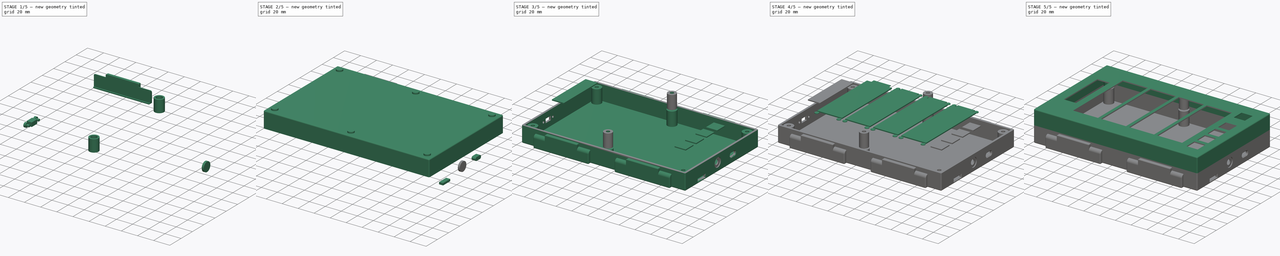
[diagram: build sequence overview — one tinted view per stage of 5, left to right]
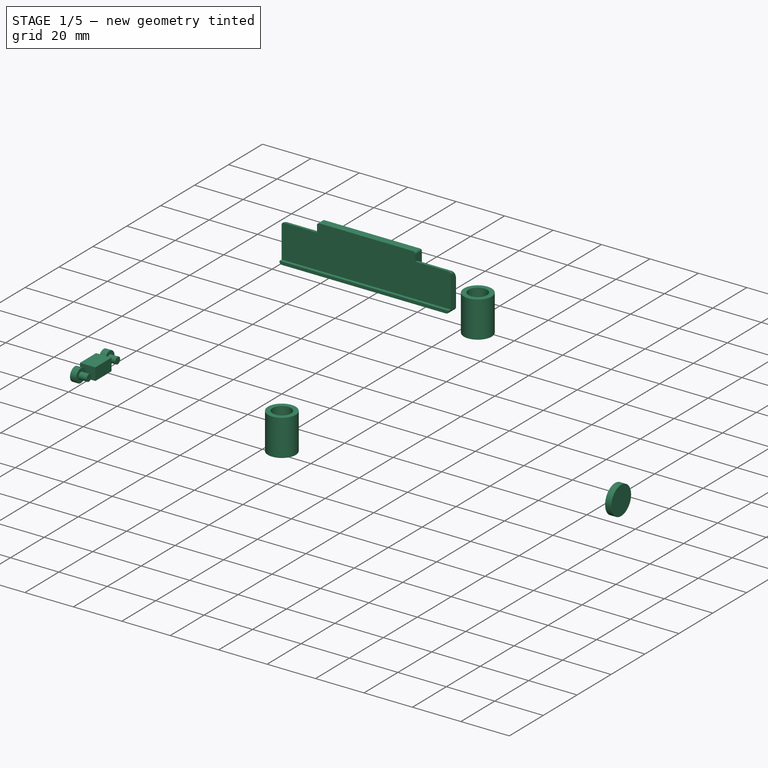
[diagram: stage 1 of 5 — iso view after this stage's code; geometry added in this stage tinted green]
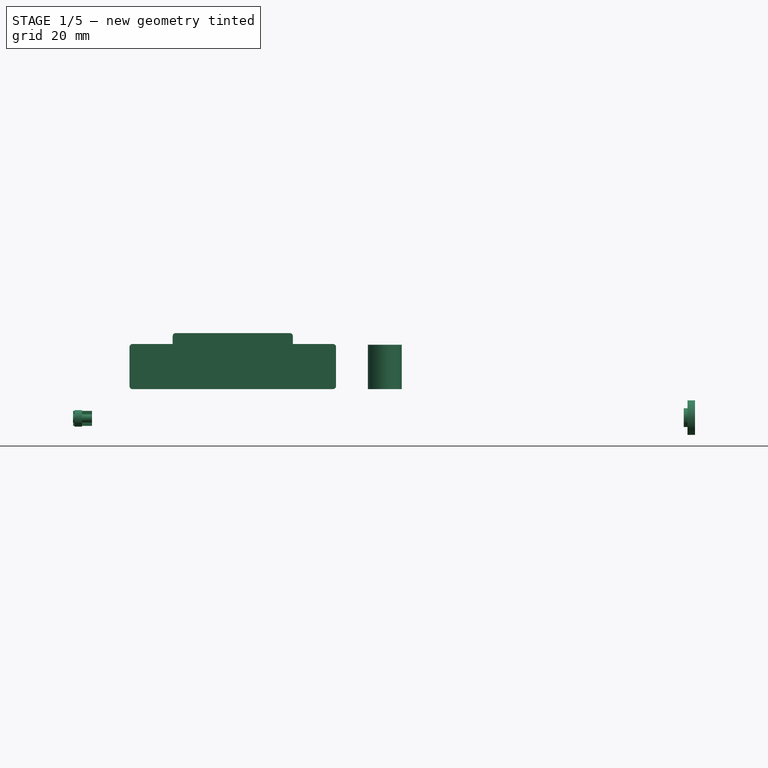
[diagram: stage 1 of 5 — front view after this stage's code; geometry added in this stage tinted green]
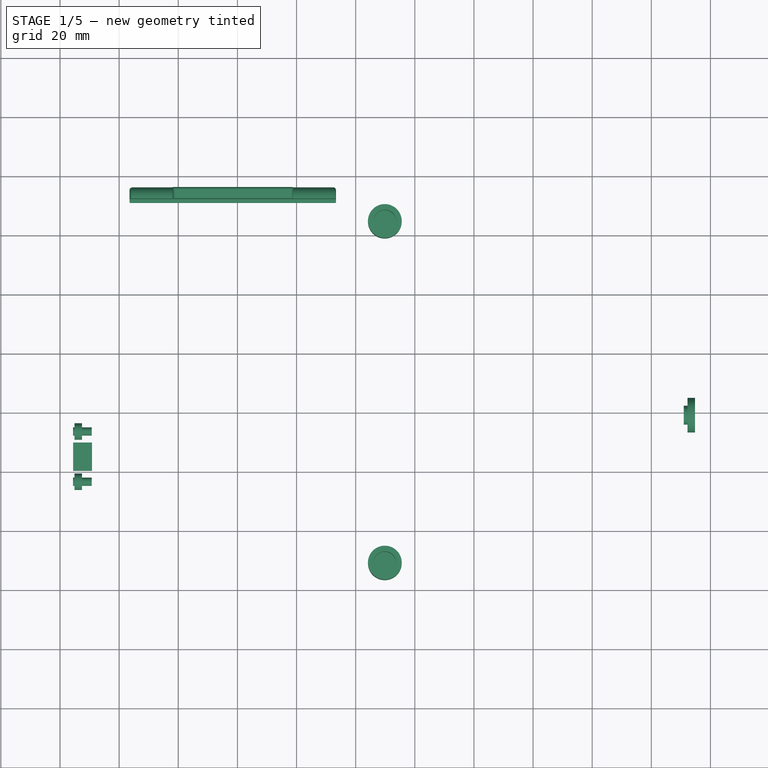
[diagram: stage 1 of 5 — top view after this stage's code; geometry added in this stage tinted green]
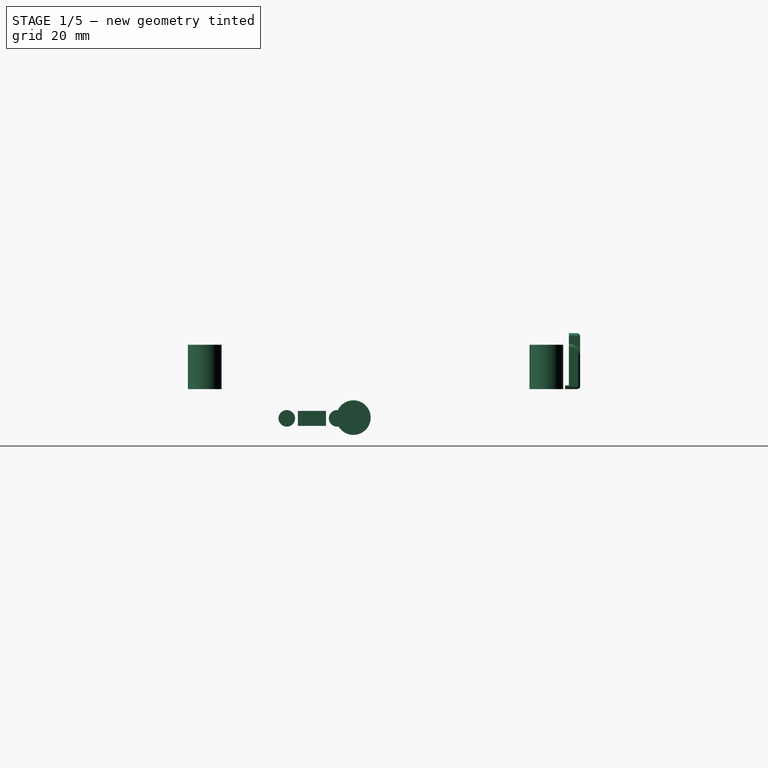
[diagram: stage 1 of 5 — right view after this stage's code; geometry added in this stage tinted green]
FCSTD DOCUMENT  (FreeCAD 2024.1003R39043 (Git))
Label: case
License: All rights reserved
LicenseURL: https://en.wikipedia.org/wiki/All_rights_reserved
objects: Part::Cylinder×28, Part::Box×26, Part::MultiFuse×20, Part::FeaturePython×18, Part::Cut×15, Part::Feature×9, App::Link×5, App::Part×5, Part::Fillet×3, Sketcher::SketchObject×3, Part::Extrusion×3, Part::Thickness×2, Part::Chamfer×2, App::LinkGroup×1, PartDesign::CoordinateSystem×1
note: 133 computed .brp shape members not serialized (recipe doc carries the construction recipe); baked Part::Feature solids carry a one-line shape summary decoded from their .brp

FEATURE [Part::Cylinder] Cylinder020
  Angle = 360
  AttacherType = Attacher::AttachEngine3D
  FirstAngle = 0
  Height = 2.54
  InvalidShape = false
  Placement = pos=(252.222,-100.838,-9.652) rot=(0,1,0;1.5708rad)
  Radius = 5.842
  SecondAngle = 0
  TreeRank = 7806
  ValidateShape = false
FEATURE [Part::Cylinder] Cylinder021
  Angle = 360
  AttacherType = Attacher::AttachEngine3D
  FirstAngle = 0
  Height = 3.81
  InvalidShape = false
  Placement = pos=(250.952,-100.838,-9.652) rot=(0,1,0;1.5708rad)
  Radius = 3.175
  SecondAngle = 0
  TreeRank = 7806
  ValidateShape = false
FEATURE [Part::MultiFuse] Fusion014
  InvalidShape = false
  Shapes = -> [Cylinder020,Cylinder021]
  TreeRank = 7807
  ValidateShape = false
FEATURE [Part::Box] Box022  label="Cube022"
  AttacherType = Attacher::AttachEngine3D
  Height = 5.08
  InvalidShape = false
  Length = 6.35
  Placement = pos=(44.45,-119.634,-12.446) rot=(0,0,1;0rad)
  TreeRank = 7815
  ValidateShape = false
  Width = 9.525
FEATURE [Part::Cylinder] Cylinder022
  Angle = 360
  AttacherType = Attacher::AttachEngine3D
  FirstAngle = 0
  Height = 6.35
  InvalidShape = false
  Placement = pos=(0,0,0) rot=(0,1,0;4.71239rad)
  Radius = 1.397
  SecondAngle = 0
  TreeRank = 7810
  ValidateShape = false
FEATURE [Part::Cylinder] Cylinder023
  Angle = 360
  AttacherType = Attacher::AttachEngine3D
  FirstAngle = 0
  Height = 6.35
  InvalidShape = false
  Placement = pos=(0,-17.018,0) rot=(0,-1,0;1.5708rad)
  Radius = 1.397
  SecondAngle = 0
  TreeRank = 7810
  ValidateShape = false
FEATURE [Part::MultiFuse] Fusion015
  InvalidShape = false
  Placement = pos=(50.7492,-106.35,-9.906) rot=(0,0,1;0rad)
  Shapes = -> [Cylinder023,Cylinder022]
  TreeRank = 7814
  ValidateShape = false
FEATURE [Part::MultiFuse] Fusion016
  InvalidShape = false
  Shapes = -> [Fusion015,Box022]
  TreeRank = 7816
  ValidateShape = false
FEATURE [Part::Cylinder] Cylinder024
  Angle = 360
  AttacherType = Attacher::AttachEngine3D
  FirstAngle = 0
  Height = 2.54
  InvalidShape = false
  Placement = pos=(0,0,0) rot=(0,1,0;4.71239rad)
  Radius = 2.794
  SecondAngle = 0
  TreeRank = 7819
  ValidateShape = false
FEATURE [Part::Cylinder] Cylinder025
  Angle = 360
  AttacherType = Attacher::AttachEngine3D
  FirstAngle = 0
  Height = 2.54
  InvalidShape = false
  Placement = pos=(0,-17.018,0) rot=(0,-1,0;1.5708rad)
  Radius = 2.794
  SecondAngle = 0
  TreeRank = 7820
  ValidateShape = false
FEATURE [Part::MultiFuse] Fusion017
  InvalidShape = false
  Placement = pos=(47.4472,-106.35,-9.906) rot=(0,0,1;0rad)
  Shapes = -> [Cylinder025,Cylinder024]
  TreeRank = 7821
  ValidateShape = false
FEATURE [Part::Cylinder] Cylinder026
  Angle = 360
  AttacherType = Attacher::AttachEngine3D
  FirstAngle = 0
  Height = 5.08
  InvalidShape = false
  Placement = pos=(149.86,-35.56,0) rot=(0,0,1;0rad)
  Radius = 3.81
  SecondAngle = 0
  TreeRank = 7831
  ValidateShape = false
FEATURE [Part::Cylinder] Cylinder027
  Angle = 360
  AttacherType = Attacher::AttachEngine3D
  FirstAngle = 0
  Height = 5.08
  InvalidShape = false
  Placement = pos=(149.86,-151.13,0) rot=(0,0,1;0rad)
  Radius = 3.81
  SecondAngle = 0
  TreeRank = 7832
  ValidateShape = false
FEATURE [Part::FeaturePython] Tube014  # WARN: FeaturePython — macro-defined, semantics opaque (R4)
  AttacherType = Attacher::AttachEngine3D
  Height = 14.986
  InnerRadius = 3.81
  InvalidShape = false
  OuterRadius = 5.715
  Placement = pos=(149.86,-35.56,0) rot=(0,0,1;0rad)
  TreeRank = 7833
  ValidateShape = false
FEATURE [Part::FeaturePython] Tube015  # WARN: FeaturePython — macro-defined, semantics opaque (R4)
  AttacherType = Attacher::AttachEngine3D
  Height = 14.986
  InnerRadius = 3.81
  InvalidShape = false
  OuterRadius = 5.715
  Placement = pos=(149.86,-151.13,0) rot=(0,0,1;0rad)
  TreeRank = 7834
  ValidateShape = false
FEATURE [Part::FeaturePython] Tube016  # WARN: FeaturePython — macro-defined, semantics opaque (R4)
  AttacherType = Attacher::AttachEngine3D
  Height = 2.54
  InnerRadius = 2.2606
  InvalidShape = false
  OuterRadius = 5.715
  Placement = pos=(149.86,-35.56,0) rot=(0,0,1;0rad)
  TreeRank = 7835
  ValidateShape = false
FEATURE [Part::FeaturePython] Tube017  # WARN: FeaturePython — macro-defined, semantics opaque (R4)
  AttacherType = Attacher::AttachEngine3D
  Height = 2.54
  InnerRadius = 2.2606
  InvalidShape = false
  OuterRadius = 5.715
  Placement = pos=(149.86,-151.13,0) rot=(0,0,1;0rad)
  TreeRank = 7836
  ValidateShape = false
FEATURE [Part::Box] Box023  label="Cube023"
  AttacherType = Attacher::AttachEngine3D
  Height = 11.43
  InvalidShape = false
  Length = 69.85
  TreeRank = 7837
  ValidateShape = false
  Width = 3.81
FEATURE [Sketcher::SketchObject] Sketch001
  ArcFitTolerance = 1e-06
  AttachmentSupport = -> [Box023]
  ExternalBSplineMaxDegree = 5
  ExternalBSplineTolerance = 0.0001
  ExternalGeometry = -> [Box023]
  FullyConstrained = true
  InternalTolerance = 1e-06
  InvalidShape = false
  MakeInternals = false
  MapMode = 5
  Placement = pos=(69.85,0,0) rot=(0.57735,0.57735,0.57735;2.0944rad)
  Support = -> [Box023]
  TreeRank = 7838
  ValidateShape = false
  sketch-geometry (3):
    g0: ArcOfCircle CenterX=0 CenterY=11.43 CenterZ=0 NormalX=0 NormalY=0 NormalZ=1 AngleXU=0 Radius=3.81 StartAngle=3e-16 EndAngle=1.5708
    g1: LineSegment StartX=0 StartY=15.24 StartZ=0 EndX=0 EndY=11.43 EndZ=0
    g2: LineSegment StartX=0 StartY=11.43 StartZ=0 EndX=3.81 EndY=11.43 EndZ=0
  constraints (7):
    c: Coincident(g0,g-3)
    c: Coincident(g0,g-3)
    c: PointOnObject(g0,g-2)
    c: Coincident(g1,g0)
    c: Coincident(g1,g0)
    c: Coincident(g2,g0)
    c: Coincident(g2,g0)
FEATURE [Part::Extrusion] Extrude003
  AutoTaperInnerAngle = true
  Base = -> Sketch001
  Dir = (1,0,0)
  DirMode = 2
  FaceMakerClass = Part::FaceMakerBullseye
  InvalidShape = false
  LengthFwd = 0
  LengthRev = 69.85
  Linearize = true
  Solid = true
  Symmetric = false
  TaperInnerAngle = 0
  TaperInnerAngleRev = 0
  TreeRank = 7840
  ValidateShape = false
FEATURE [Part::Box] Box024  label="Cube024"
  AttacherType = Attacher::AttachEngine3D
  Height = 7.62
  InvalidShape = false
  Length = 40.64
  Placement = pos=(14.605,0,11.303) rot=(0,0,1;0rad)
  TreeRank = 7841
  ValidateShape = false
  Width = 3.81
FEATURE [App::Link] Link  label="Link(Fillet002)"
  AutoLinkLabel = true
  AutoPlacement = true
  LinkPlacement = pos=(3.05176e-06,0.635,-1.16348e-06) rot=(0,0,1;0rad)
  LinkTransform = true
  LinkedObject = -> Fillet002
  Placement = pos=(3.05176e-06,0.635,-1.16348e-06) rot=(0,0,1;0rad)
  SyncGroupVisibility = false
  TreeRank = 7845
  _LinkVersion = 1
FEATURE [App::Link] Link001  label="Link001(*Fillet002)"
  AutoLinkLabel = true
  AutoPlacement = true
  LinkPlacement = pos=(102.87,0.634989,-1.16348e-06) rot=(0,0,1;0rad)
  LinkedObject = -> Link
  Placement = pos=(102.87,0.634989,-1.16348e-06) rot=(0,0,1;0rad)
  SyncGroupVisibility = false
  TreeRank = 7847
  _LinkVersion = 1
FEATURE [App::Link] Link002  label="Link002(*Fillet002)"
  AutoLinkLabel = true
  AutoPlacement = true
  LinkPlacement = pos=(299.72,-187.325,1.2207e-06) rot=(0,0,1;3.14159rad)
  LinkedObject = -> Link001
  Placement = pos=(299.72,-187.325,1.2207e-06) rot=(0,0,1;3.14159rad)
  SyncGroupVisibility = false
  TreeRank = 7848
  _LinkVersion = 1
FEATURE [App::Link] Link003  label="Link003(*Fillet002)"
  AutoLinkLabel = true
  AutoPlacement = true
  LinkPlacement = pos=(196.85,-187.325,2.67029e-07) rot=(0,0,1;3.14159rad)
  LinkedObject = -> Link
  Placement = pos=(196.85,-187.325,2.67029e-07) rot=(0,0,1;3.14159rad)
  SyncGroupVisibility = false
  TreeRank = 7849
  _LinkVersion = 1
FEATURE [App::LinkGroup] LinkGroup
  ElementList = -> [Link,Link001,Link002,Link003]
  LinkMode = 1
  Placement = pos=(0,-5.72205e-06,-20.32) rot=(0,0,1;0rad)
  TreeRank = 7859
  _LinkVersion = 1
FEATURE [Part::Box] Box025  label="Cube025"
  AttacherType = Attacher::AttachEngine3D
  Height = 1.27
  InvalidShape = false
  Length = 69.85
  Placement = pos=(0,-1.27,0) rot=(0,0,1;0rad)
  TreeRank = 7855
  ValidateShape = false
  Width = 1.27
FEATURE [Part::MultiFuse] Fusion019
  InvalidShape = false
  Shapes = -> [Box023,Extrude003,Box024,Box025]
  TreeRank = 7842
  ValidateShape = false
FEATURE [Part::Fillet] Fillet002
  Base = -> Fusion019
  EdgeLinks = -> Fusion019 [Edge4,Edge5,Edge8,Edge16,Edge18,Edge24,Edge25,Edge31,Edge42,Edge46,Edge49,Edge51]
  Edges = 12 edges r=1: [Edge4,Edge5,Edge8,Edge16,Edge18,Edge24,Edge25,Edge31,Edge42,Edge46,Edge49,Edge51]
  InvalidShape = false
  Placement = pos=(63.5,-27.94,0) rot=(0,0,1;0rad)
  TreeRank = 7843
  ValidateShape = false
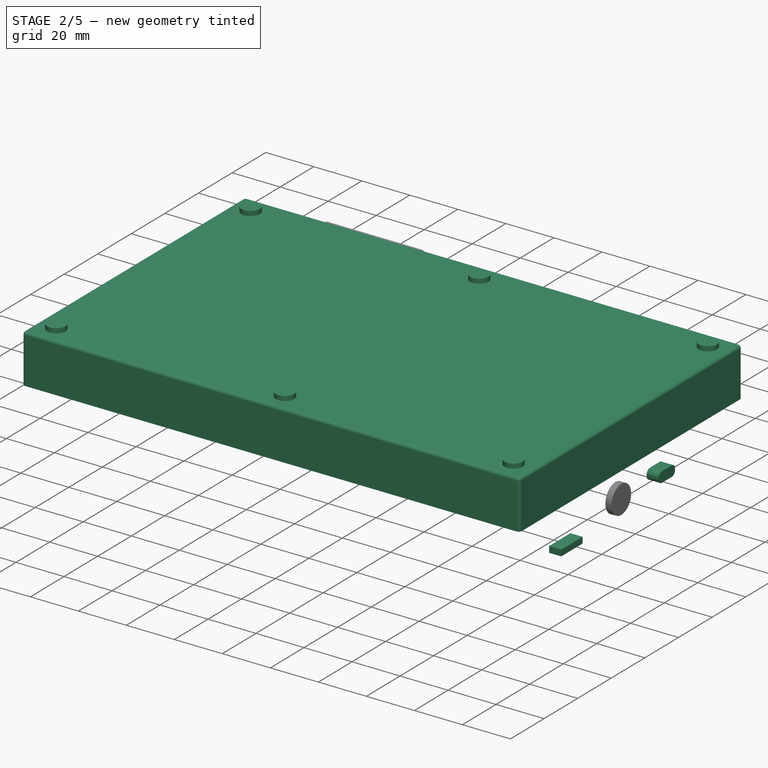
[diagram: stage 2 of 5 — iso view after this stage's code; geometry added in this stage tinted green]
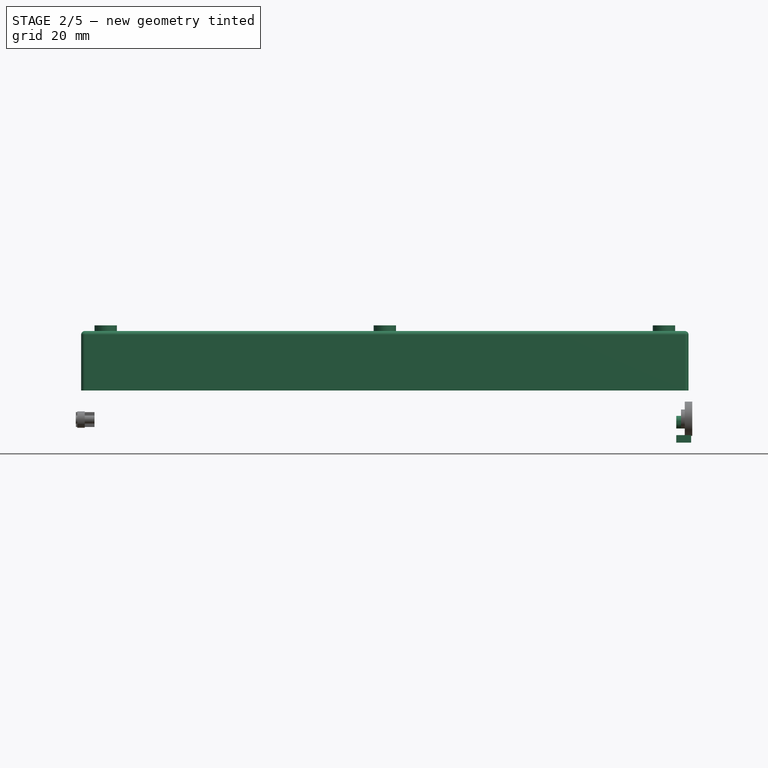
[diagram: stage 2 of 5 — front view after this stage's code; geometry added in this stage tinted green]
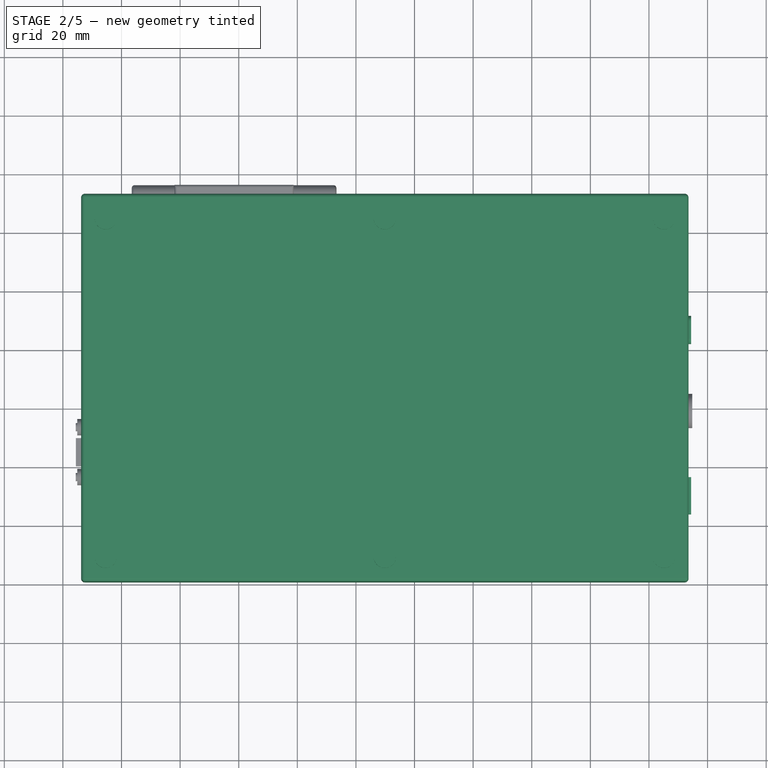
[diagram: stage 2 of 5 — top view after this stage's code; geometry added in this stage tinted green]
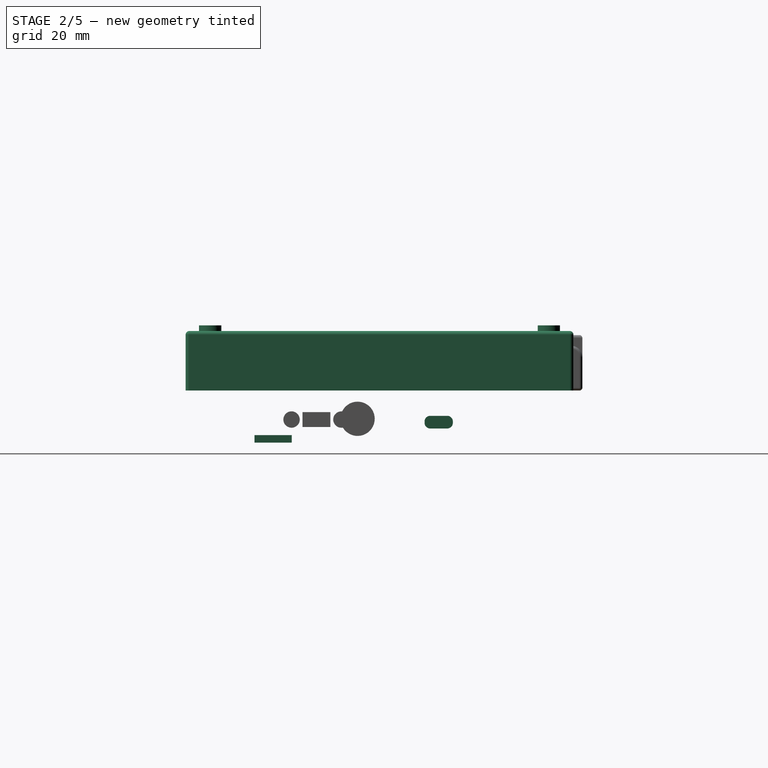
[diagram: stage 2 of 5 — right view after this stage's code; geometry added in this stage tinted green]
FEATURE [Part::Box] Box017  label="Cube017"
  AttacherType = Attacher::AttachEngine3D
  Height = 19.05
  InvalidShape = false
  Length = 204.724
  Placement = pos=(47.498,-158.242,0) rot=(0,0,1;0rad)
  TreeRank = 7787
  ValidateShape = false
  Width = 129.794
FEATURE [Part::Thickness] Thickness001
  Faces = -> Box017 [Face5]
  Intersection = false
  InvalidShape = false
  Join = 0
  Mode = 0
  SelfIntersection = false
  TreeRank = 7788
  ValidateShape = false
  Value = 1.27
FEATURE [Part::FeaturePython] Tube004  # WARN: FeaturePython — macro-defined, semantics opaque (R4)
  AttacherType = Attacher::AttachEngine3D
  Height = 14.986
  InnerRadius = 3.81
  InvalidShape = false
  OuterRadius = 5.715
  Placement = pos=(54.61,-35.56,0) rot=(0,0,1;0rad)
  TreeRank = 7770
  ValidateShape = false
FEATURE [Part::FeaturePython] Tube005  # WARN: FeaturePython — macro-defined, semantics opaque (R4)
  AttacherType = Attacher::AttachEngine3D
  Height = 14.986
  InnerRadius = 3.81
  InvalidShape = false
  OuterRadius = 5.715
  Placement = pos=(245.11,-35.56,0) rot=(0,0,1;0rad)
  TreeRank = 7770
  ValidateShape = false
FEATURE [Part::FeaturePython] Tube006  # WARN: FeaturePython — macro-defined, semantics opaque (R4)
  AttacherType = Attacher::AttachEngine3D
  Height = 14.986
  InnerRadius = 3.81
  InvalidShape = false
  OuterRadius = 5.715
  Placement = pos=(54.61,-151.13,0) rot=(0,0,1;0rad)
  TreeRank = 7770
  ValidateShape = false
FEATURE [Part::FeaturePython] Tube007  # WARN: FeaturePython — macro-defined, semantics opaque (R4)
  AttacherType = Attacher::AttachEngine3D
  Height = 14.986
  InnerRadius = 3.81
  InvalidShape = false
  OuterRadius = 5.715
  Placement = pos=(245.11,-151.13,0) rot=(0,0,1;0rad)
  TreeRank = 7770
  ValidateShape = false
FEATURE [Part::Box] Box018  label="Cube018"
  AttacherType = Attacher::AttachEngine3D
  Height = 19.05
  InvalidShape = false
  Length = 204.724
  Placement = pos=(47.498,-158.242,0) rot=(0,0,1;0rad)
  TreeRank = 7790
  ValidateShape = false
  Width = 129.794
FEATURE [Part::Box] Box019  label="Cube019"
  AttacherType = Attacher::AttachEngine3D
  Height = 19.05
  InvalidShape = false
  Length = 202.184
  Placement = pos=(48.768,-156.972,0) rot=(0,0,1;0rad)
  TreeRank = 7791
  ValidateShape = false
  Width = 127.254
FEATURE [Part::Cut] Cut009
  Base = -> Box018
  InvalidShape = false
  Tool = -> Box019
  TreeRank = 7792
  ValidateShape = false
FEATURE [Part::FeaturePython] Tube008  # WARN: FeaturePython — macro-defined, semantics opaque (R4)
  AttacherType = Attacher::AttachEngine3D
  Height = 2.54
  InnerRadius = 2.2606
  InvalidShape = false
  OuterRadius = 5.715
  Placement = pos=(54.61,-35.56,0) rot=(0,0,1;0rad)
  TreeRank = 7770
  ValidateShape = false
FEATURE [Part::FeaturePython] Tube009  # WARN: FeaturePython — macro-defined, semantics opaque (R4)
  AttacherType = Attacher::AttachEngine3D
  Height = 2.54
  InnerRadius = 2.2606
  InvalidShape = false
  OuterRadius = 5.715
  Placement = pos=(245.11,-35.56,0) rot=(0,0,1;0rad)
  TreeRank = 7770
  ValidateShape = false
FEATURE [Part::FeaturePython] Tube010  # WARN: FeaturePython — macro-defined, semantics opaque (R4)
  AttacherType = Attacher::AttachEngine3D
  Height = 2.54
  InnerRadius = 2.2606
  InvalidShape = false
  OuterRadius = 5.715
  Placement = pos=(54.61,-151.13,0) rot=(0,0,1;0rad)
  TreeRank = 7770
  ValidateShape = false
FEATURE [Part::FeaturePython] Tube011  # WARN: FeaturePython — macro-defined, semantics opaque (R4)
  AttacherType = Attacher::AttachEngine3D
  Height = 2.54
  InnerRadius = 2.2606
  InvalidShape = false
  OuterRadius = 5.715
  Placement = pos=(245.11,-151.13,0) rot=(0,0,1;0rad)
  TreeRank = 7770
  ValidateShape = false
FEATURE [Part::Cylinder] Cylinder016
  Angle = 360
  AttacherType = Attacher::AttachEngine3D
  FirstAngle = 0
  Height = 5.08
  InvalidShape = false
  Placement = pos=(54.61,-35.56,0) rot=(0,0,1;0rad)
  Radius = 3.81
  SecondAngle = 0
  TreeRank = 7797
  ValidateShape = false
FEATURE [Part::Cylinder] Cylinder017
  Angle = 360
  AttacherType = Attacher::AttachEngine3D
  FirstAngle = 0
  Height = 5.08
  InvalidShape = false
  Placement = pos=(245.11,-35.56,0) rot=(0,0,1;0rad)
  Radius = 3.81
  SecondAngle = 0
  TreeRank = 7797
  ValidateShape = false
FEATURE [Part::Cylinder] Cylinder018
  Angle = 360
  AttacherType = Attacher::AttachEngine3D
  FirstAngle = 0
  Height = 5.08
  InvalidShape = false
  Placement = pos=(54.61,-151.13,0) rot=(0,0,1;0rad)
  Radius = 3.81
  SecondAngle = 0
  TreeRank = 7797
  ValidateShape = false
FEATURE [Part::Cylinder] Cylinder019
  Angle = 360
  AttacherType = Attacher::AttachEngine3D
  FirstAngle = 0
  Height = 5.08
  InvalidShape = false
  Placement = pos=(245.11,-151.13,0) rot=(0,0,1;0rad)
  Radius = 3.81
  SecondAngle = 0
  TreeRank = 7797
  ValidateShape = false
FEATURE [Part::Box] Box020  label="Cube020"
  AttacherType = Attacher::AttachEngine3D
  Height = 2.54
  InvalidShape = false
  Length = 5.08
  Placement = pos=(249.301,-136.017,-17.78) rot=(0,0,1;0rad)
  TreeRank = 7801
  ValidateShape = false
  Width = 12.7
FEATURE [Part::Box] Box021  label="Cube021"
  AttacherType = Attacher::AttachEngine3D
  Height = 4.318
  InvalidShape = false
  Length = 5.08
  Placement = pos=(249.301,-77.978,-12.954) rot=(0,0,1;0rad)
  TreeRank = 7803
  ValidateShape = false
  Width = 9.652
FEATURE [Part::Fillet] Fillet001
  Base = -> Box021
  EdgeLinks = -> Box021 [Edge9,Edge10,Edge11,Edge12]
  Edges = 4 edges r=1.91: [Edge9,Edge10,Edge11,Edge12]
  InvalidShape = false
  TreeRank = 7804
  ValidateShape = false
FEATURE [Part::MultiFuse] Fusion013
  InvalidShape = false
  Placement = pos=(0,0,17.145) rot=(0,0,1;0rad)
  Shapes = -> [Cylinder016,Cylinder017,Cylinder018,Cylinder019,Cylinder027,Cylinder026]
  TreeRank = 7798
  ValidateShape = false
FEATURE [Part::MultiFuse] Fusion008
  InvalidShape = false
  Placement = pos=(0,0,4.064) rot=(0,0,1;0rad)
  Shapes = -> [Tube004,Tube005,Tube006,Tube007,Tube015,Tube014]
  TreeRank = 7789
  ValidateShape = false
FEATURE [Part::MultiFuse] Fusion010
  InvalidShape = false
  Placement = pos=(0,0,1.524) rot=(0,0,1;0rad)
  Shapes = -> [Tube008,Tube009,Tube010,Tube011,Tube017,Tube016]
  TreeRank = 7794
  ValidateShape = false
FEATURE [Part::MultiFuse] Fusion011
  InvalidShape = false
  Shapes = -> [Fusion010,Fusion008]
  TreeRank = 7795
  ValidateShape = false
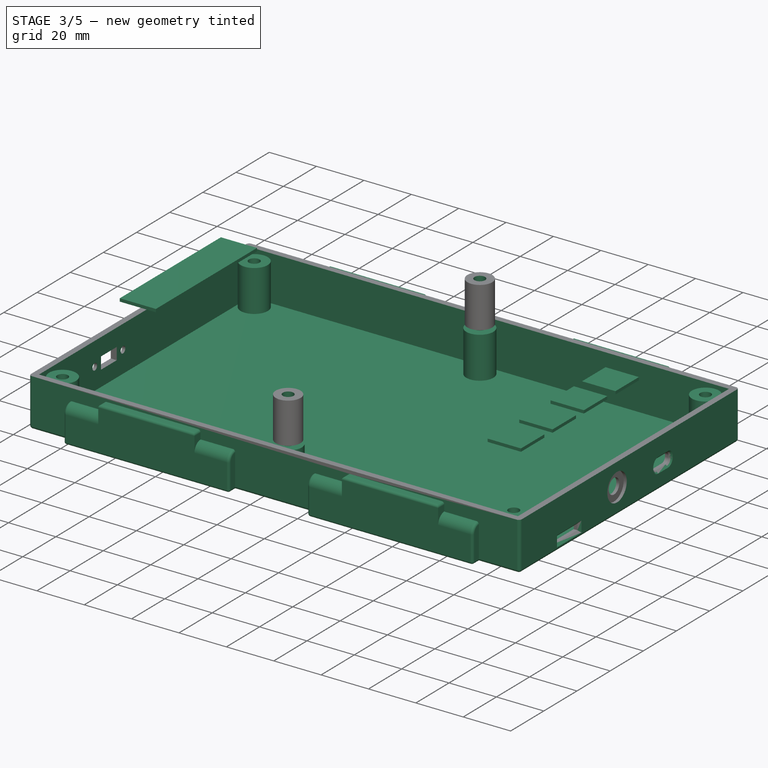
[diagram: stage 3 of 5 — iso view after this stage's code; geometry added in this stage tinted green]
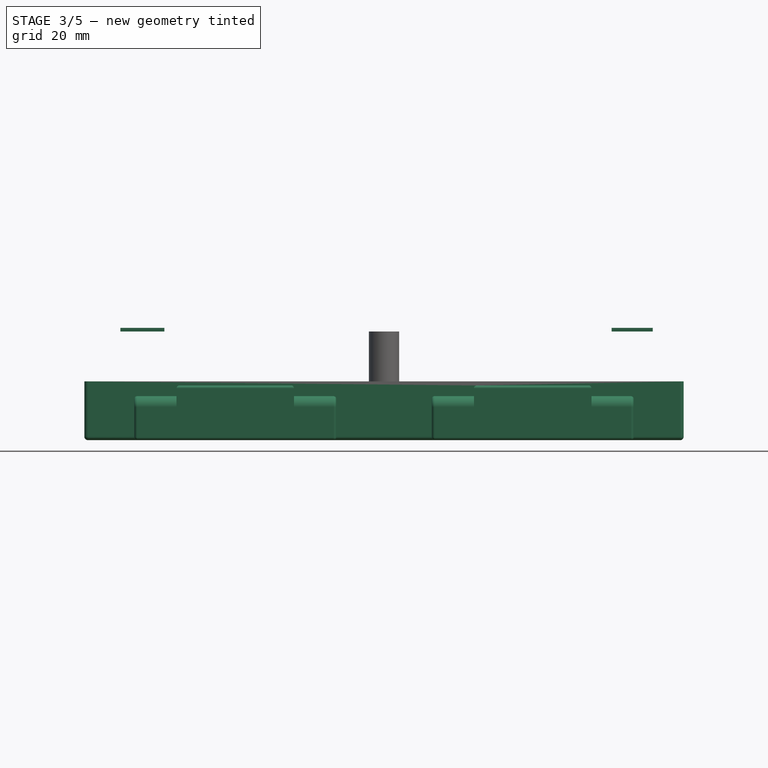
[diagram: stage 3 of 5 — front view after this stage's code; geometry added in this stage tinted green]
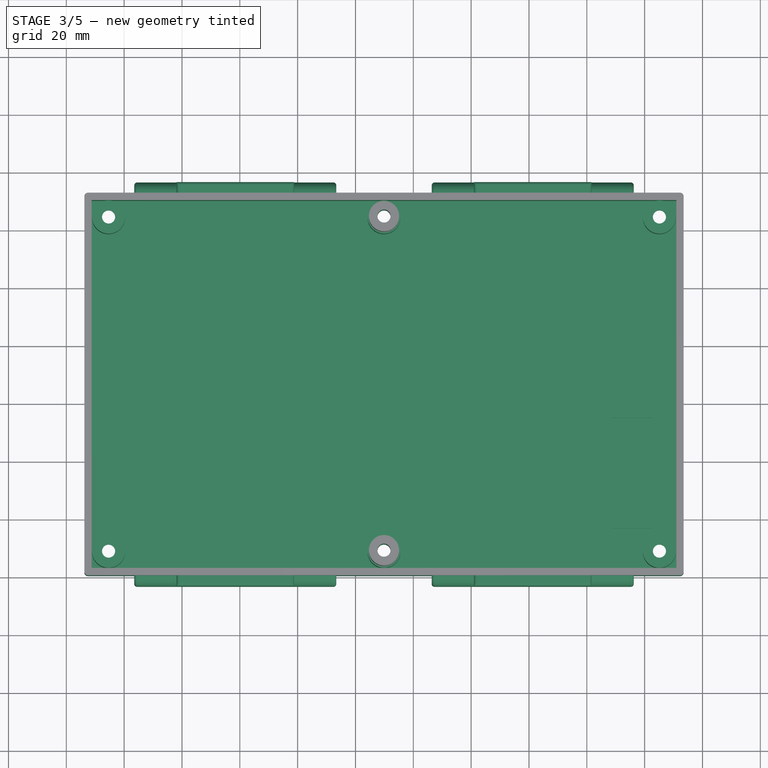
[diagram: stage 3 of 5 — top view after this stage's code; geometry added in this stage tinted green]
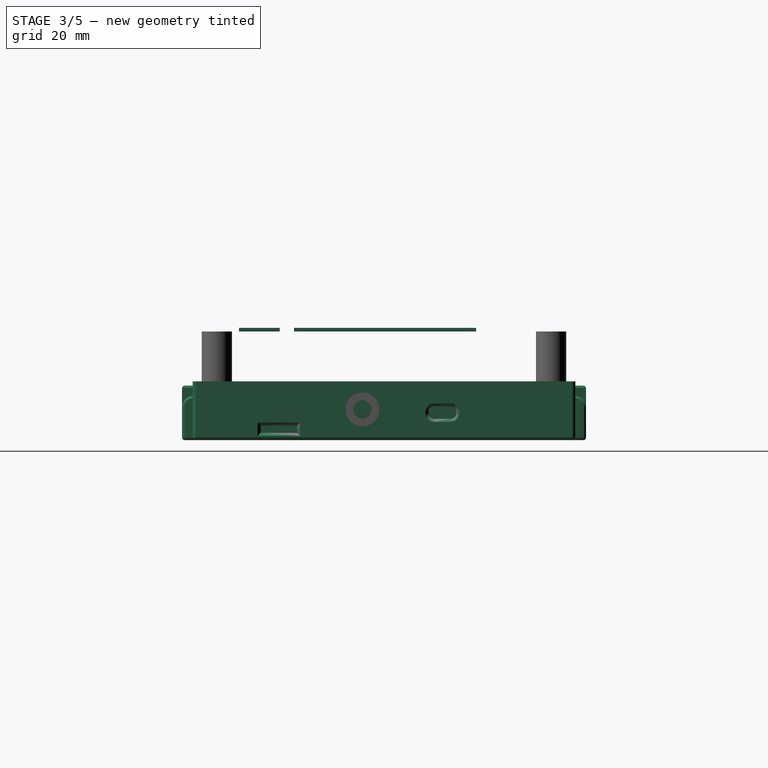
[diagram: stage 3 of 5 — right view after this stage's code; geometry added in this stage tinted green]
FEATURE [Part::Box] Box009  label="Cube009"
  AttacherType = Attacher::AttachEngine3D
  Height = 1.27
  InvalidShape = false
  Length = 15.24
  Placement = pos=(58.674,-122.428,17.272) rot=(0,0,1;0rad)
  TreeRank = 7757
  ValidateShape = false
  Width = 60.96
FEATURE [Part::Box] Box010  label="Cube010"
  AttacherType = Attacher::AttachEngine3D
  Height = 1.27
  InvalidShape = false
  Length = 14.097
  Placement = pos=(228.473,-59.436,0) rot=(0,0,1;0rad)
  TreeRank = 7760
  ValidateShape = false
  Width = 14.097
FEATURE [Part::Box] Box011  label="Cube011"
  AttacherType = Attacher::AttachEngine3D
  Height = 1.27
  InvalidShape = false
  Length = 14.097
  Placement = pos=(228.473,-78.486,0) rot=(0,0,1;0rad)
  TreeRank = 7760
  ValidateShape = false
  Width = 14.097
FEATURE [Part::Box] Box012  label="Cube012"
  AttacherType = Attacher::AttachEngine3D
  Height = 1.27
  InvalidShape = false
  Length = 14.097
  Placement = pos=(228.6,-97.536,0) rot=(0,0,1;0rad)
  TreeRank = 7760
  ValidateShape = false
  Width = 14.097
FEATURE [Part::Box] Box014  label="Cube014"
  AttacherType = Attacher::AttachEngine3D
  Height = 1.27
  InvalidShape = false
  Length = 14.097
  Placement = pos=(228.6,-116.586,0) rot=(0,0,1;0rad)
  TreeRank = 7760
  ValidateShape = false
  Width = 14.097
FEATURE [Part::MultiFuse] Fusion003
  InvalidShape = false
  Placement = pos=(0.127,-26.924,17.272) rot=(0,0,1;0rad)
  Shapes = -> [Box014,Box012,Box011,Box010]
  TreeRank = 7781
  ValidateShape = false
FEATURE [Part::MultiFuse] Fusion009
  InvalidShape = false
  Shapes = -> [Cut009,Thickness001]
  TreeRank = 7793
  ValidateShape = false
FEATURE [Part::FeaturePython] Tube012  # WARN: FeaturePython — macro-defined, semantics opaque (R4)
  AttacherType = Attacher::AttachEngine3D
  Height = 17.272
  InnerRadius = 2.2606
  InvalidShape = false
  OuterRadius = 5.2324
  Placement = pos=(149.86,-35.56,0) rot=(0,0,1;0rad)
  TreeRank = 7829
  ValidateShape = false
FEATURE [Part::FeaturePython] Tube013  # WARN: FeaturePython — macro-defined, semantics opaque (R4)
  AttacherType = Attacher::AttachEngine3D
  Height = 17.272
  InnerRadius = 2.2606
  InvalidShape = false
  OuterRadius = 5.2324
  Placement = pos=(149.86,-151.13,0) rot=(0,0,1;0rad)
  TreeRank = 7830
  ValidateShape = false
FEATURE [Part::MultiFuse] Fusion012
  InvalidShape = false
  Shapes = -> [Fusion009,Fusion011]
  TreeRank = 7796
  ValidateShape = false
FEATURE [Part::Cut] Cut010
  Base = -> Fusion012
  InvalidShape = false
  Tool = -> Fusion013
  TreeRank = 7799
  ValidateShape = false
FEATURE [Part::Fillet] Fillet
  Base = -> Cut010
  EdgeLinks = -> Cut010 [Edge71,Edge72,Edge73,Edge74,Edge75,Edge76]
  Edges = 6 edges r=1: [Edge71,Edge72,Edge73,Edge74,Edge75,Edge76]
  InvalidShape = false
  Placement = pos=(0,-186.69,2.29e-14) rot=(1,0,0;3.14159rad)
  TreeRank = 7800
  ValidateShape = false
FEATURE [Part::Cut] Cut011
  Base = -> Fillet
  InvalidShape = false
  Tool = -> Box020
  TreeRank = 7802
  ValidateShape = false
FEATURE [Part::Cut] Cut012
  Base = -> Cut011
  InvalidShape = false
  Tool = -> Fillet001
  TreeRank = 7805
  ValidateShape = false
FEATURE [Part::Cut] Cut013
  Base = -> Cut012
  InvalidShape = false
  Tool = -> Fusion014
  TreeRank = 7813
  ValidateShape = false
FEATURE [Part::Cut] Cut014
  Base = -> Cut013
  InvalidShape = false
  Tool = -> Fusion016
  TreeRank = 7817
  ValidateShape = false
FEATURE [Part::Chamfer] Chamfer
  Base = -> Cut014
  EdgeLinks = -> Cut014 [Edge59,Edge60,Edge61,Edge62,Edge64,Edge65,Edge66,Edge67,Edge68,Edge69,Edge70,Edge71]
  Edges = 12 edges r=1.02: [Edge59,Edge60,Edge61,Edge62,Edge64,Edge65,Edge66,Edge67,Edge68,Edge69,Edge70,Edge71]
  InvalidShape = false
  TreeRank = 7818
  ValidateShape = false
FEATURE [Part::Cut] Cut015
  Base = -> Chamfer
  InvalidShape = false
  Tool = -> Fusion017
  TreeRank = 7822
  ValidateShape = false
FEATURE [Part::Chamfer] Chamfer001
  Base = -> Cut015
  EdgeLinks = -> Cut015 [Edge79,Edge84]
  Edges = 2 edges r=0.51: [Edge79,Edge84]
  InvalidShape = false
  TreeRank = 7858
  ValidateShape = false
FEATURE [Sketcher::SketchObject] Sketch
  ArcFitTolerance = 1e-06
  ExternalBSplineMaxDegree = 5
  ExternalBSplineTolerance = 0.0001
  ExternalGeometry = -> [Chamfer001]
  FullyConstrained = true
  InternalTolerance = 1e-06
  InvalidShape = false
  MakeInternals = false
  MapMode = 2
  TreeRank = 7824
  ValidateShape = false
  sketch-geometry (16):
    g0: LineSegment StartX=47.5996 StartY=-28.0416 StartZ=0 EndX=252.12 EndY=-28.0416 EndZ=0
    g1: LineSegment StartX=252.628 StartY=-28.5496 StartZ=0 EndX=252.628 EndY=-158.14 EndZ=0
    g2: LineSegment StartX=252.12 StartY=-158.648 StartZ=0 EndX=47.5996 EndY=-158.648 EndZ=0
    g3: LineSegment StartX=47.0916 StartY=-158.14 StartZ=0 EndX=47.0916 EndY=-28.5496 EndZ=0
    g4: LineSegment StartX=48.0314 StartY=-28.8544 StartZ=0 EndX=251.689 EndY=-28.8544 EndZ=0
    g5: LineSegment StartX=251.816 StartY=-28.9814 StartZ=0 EndX=251.816 EndY=-157.709 EndZ=0
    g6: LineSegment StartX=251.689 StartY=-157.836 StartZ=0 EndX=48.0314 EndY=-157.836 EndZ=0
    g7: LineSegment StartX=47.9044 StartY=-157.709 StartZ=0 EndX=47.9044 EndY=-28.9814 EndZ=0
    g8: ArcOfCircle CenterX=47.5996 CenterY=-28.5496 CenterZ=0 NormalX=0 NormalY=0 NormalZ=1 AngleXU=0 Radius=0.508 StartAngle=1.5708 EndAngle=3.14159
    g9: ArcOfCircle CenterX=48.0314 CenterY=-28.9814 CenterZ=0 NormalX=0 NormalY=0 NormalZ=1 AngleXU=0 Radius=0.127 StartAngle=1.5708 EndAngle=3.14159
    g10: ArcOfCircle CenterX=47.5996 CenterY=-158.14 CenterZ=0 NormalX=0 NormalY=0 NormalZ=1 AngleXU=0 Radius=0.508 StartAngle=3.14159 EndAngle=4.71239
    g11: ArcOfCircle CenterX=48.0314 CenterY=-157.709 CenterZ=0 NormalX=0 NormalY=0 NormalZ=1 AngleXU=0 Radius=0.127 StartAngle=3.14159 EndAngle=4.71239
    g12: ArcOfCircle CenterX=252.12 CenterY=-158.14 CenterZ=0 NormalX=0 NormalY=0 NormalZ=1 AngleXU=0 Radius=0.508 StartAngle=4.71239 EndAngle=6.28319
    g13: ArcOfCircle CenterX=251.689 CenterY=-157.709 CenterZ=0 NormalX=0 NormalY=0 NormalZ=1 AngleXU=0 Radius=0.127 StartAngle=4.71239 EndAngle=6.28319
    g14: ArcOfCircle CenterX=252.12 CenterY=-28.5496 CenterZ=0 NormalX=0 NormalY=0 NormalZ=1 AngleXU=0 Radius=0.508 StartAngle=6e-16 EndAngle=1.5708
    g15: ArcOfCircle CenterX=251.689 CenterY=-28.9814 CenterZ=0 NormalX=0 NormalY=0 NormalZ=1 AngleXU=0 Radius=0.127 StartAngle=0 EndAngle=1.5708
  constraints (40):
    c: Horizontal(g0)
    c: Horizontal(g2)
    c: Vertical(g1)
    c: Vertical(g3)
    c: Horizontal(g4)
    c: Horizontal(g6)
    c: Vertical(g5)
    c: Vertical(g7)
    c: Tangent(g0,g8) = 1.5708
    c: Tangent(g3,g8) = 1.5708
    c: Radius(g8) = 0.508
    c: DistanceX(g3,g-4) = 0.4064
    c: Tangent(g4,g9) = 1.5708
    c: Tangent(g7,g9) = 1.5708
    c: Radius(g9) = 0.127
    c: DistanceX(g-4,g7) = 0.4064
    c: Tangent(g3,g10) = 1.5708
    c: Tangent(g2,g10) = 1.5708
    c: Tangent(g7,g11) = 1.5708
    c: Tangent(g6,g11) = 1.5708
    c: Radius(g10) = 0.508
    c: Radius(g11) = 0.127
    c: DistanceY(g2,g-5) = 0.4064
    c: DistanceY(g-5,g6) = 0.4064
    c: Tangent(g1,g12) = 1.5708
    c: Tangent(g2,g12) = 1.5708
    c: Tangent(g5,g13) = 1.5708
    c: Tangent(g6,g13) = 1.5708
    c: Radius(g12) = 0.508
    c: Radius(g13) = 0.127
    c: DistanceX(g5,g-6) = 0.4064
    c: DistanceX(g-6,g1) = 0.4064
    c: Tangent(g0,g14) = 1.5708
    c: Tangent(g1,g14) = 1.5708
    c: Tangent(g4,g15) = 1.5708
    c: Tangent(g5,g15) = 1.5708
    c: Radius(g14) = 0.508
    c: Radius(g15) = 0.127
    c: DistanceY(g-6,g0) = 0.4064
    c: DistanceY(g4,g-6) = 0.4064
FEATURE [Part::Extrusion] Extrude
  AutoTaperInnerAngle = true
  Base = -> Sketch
  Dir = (0,0,1)
  DirMode = 2
  FaceMakerClass = Part::FaceMakerBullseye
  InvalidShape = false
  LengthFwd = 0
  LengthRev = 1.905
  Linearize = true
  Solid = true
  Symmetric = false
  TaperInnerAngle = 0
  TaperInnerAngleRev = 0
  TreeRank = 7857
  ValidateShape = false
FEATURE [Part::Extrusion] Extrude001
  AutoTaperInnerAngle = true
  Base = -> Sketch
  Dir = (0,0,1)
  DirMode = 2
  FaceMakerClass = Part::FaceMakerBullseye
  InvalidShape = false
  LengthFwd = 1.27
  LengthRev = 0
  Linearize = true
  Placement = pos=(0,0,-1.27) rot=(0,0,1;0rad)
  Solid = true
  Symmetric = false
  TaperInnerAngle = 0
  TaperInnerAngleRev = 0
  TreeRank = 7827
  ValidateShape = false
FEATURE [Part::MultiFuse] Fusion020
  InvalidShape = false
  Shapes = -> [Chamfer001,LinkGroup]
  TreeRank = 7860
  ValidateShape = false
FEATURE [Part::Cut] Cut016  label="bottom"
  Base = -> Fusion020
  InvalidShape = false
  Tool = -> Extrude
  TreeRank = 7861
  ValidateShape = false
FEATURE [Part::Feature] Compound  label="DEV-15583 board"
  InvalidShape = false
  TreeRank = 51
  ValidateShape = false
  shape: bbox 17.78 x 4.381 x 36.26 mm, 1389 faces, 117 solids (baked)
FEATURE [Part::Feature] Compound001  label="C5-C18 (0.55mm)"
  InvalidShape = false
  Placement = pos=(2.8547,0,5.23354) rot=(-0.707107,0,0.707107;3.14159rad)
  TreeRank = 52
  ValidateShape = false
  shape: bbox 6.704 x 0.55 x 8.029 mm, 506 faces, 33 solids (baked)
FEATURE [Part::Feature] Compound002  label="C20-C24 (0.65)"
  InvalidShape = false
  Placement = pos=(4.13135,0,5.17632) rot=(-0.707107,0,0.707107;3.14159rad)
  TreeRank = 53
  ValidateShape = false
  shape: bbox 9.151 x 0.65 x 9.802 mm, 230 faces, 15 solids (baked)
FEATURE [Part::Feature] Compound003  label="R1-R3 (0.4inch)_1269AS-H-3R3M=P2"
  InvalidShape = false
  Placement = pos=(-5.00017,-3.36e-14,4.80472) rot=(0.707107,0,0.707107;3.14159rad)
  TreeRank = 54
  ValidateShape = false
  shape: bbox 7.3 x 1.016 x 11.17 mm, 138 faces, 9 solids (baked)
FEATURE [Part::Feature] Compound004  label="L1^DEV-15583 ASS"
  InvalidShape = false
  TreeRank = 55
  ValidateShape = false
  shape: bbox 1.716 x 1.2 x 0.9607 mm, 32 faces, 4 solids (baked)
FEATURE [Part::Feature] Compound005  label="C"
  InvalidShape = false
  Placement = pos=(4.37539,0,-2.08663) rot=(0.707107,0,-0.707107;3.14159rad)
  TreeRank = 56
  ValidateShape = false
  shape: bbox 0.5 x 0.55 x 1 mm, 46 faces, 3 solids (baked)
FEATURE [Part::Feature] Compound006  label="C2"
  InvalidShape = false
  Placement = pos=(-3.99897,-0.55,-1.51779) rot=(0,1,0;1.5708rad)
  TreeRank = 58
  ValidateShape = false
  shape: bbox 0.5 x 0.55 x 1 mm, 46 faces, 3 solids (baked)
FEATURE [App::Link] Link004  label="C001"
  AutoLinkLabel = true
  AutoPlacement = true
  LinkPlacement = pos=(3.27796,-0.55,-2.93881) rot=(0,1,0;1.5708rad)
  LinkedObject = -> Compound005
  Placement = pos=(3.27796,-0.55,-2.93881) rot=(0,1,0;1.5708rad)
  SyncGroupVisibility = false
  TreeRank = 57
  _LinkVersion = 1
FEATURE [PartDesign::CoordinateSystem] Local_CS_1dc7  label="Local_CS_1dc7dc7"
  AttacherType = Attacher::AttachEngine3D
  AttachmentSupport = -> [X_Axis]
  InvalidShape = false
  MapMode = 2
  Support = -> [X_Axis]
  TreeRank = 4
  ValidateShape = false
FEATURE [Sketcher::SketchObject] PCB_Sketch_1dc7  label="PCB_Sketch_1dc7dc7"
  ArcFitTolerance = 1e-06
  ExternalBSplineMaxDegree = 5
  ExternalBSplineTolerance = 0.0001
  FullyConstrained = false
  InternalTolerance = 1e-06
  InvalidShape = false
  MakeInternals = false
  TreeRank = 34
  ValidateShape = false
  sketch-geometry (4):
    g0: LineSegment StartX=91.186 StartY=-68.961 StartZ=0 EndX=212.344 EndY=-68.961 EndZ=0
    g1: LineSegment StartX=212.344 StartY=-68.961 StartZ=0 EndX=212.344 EndY=-142.494 EndZ=0
    g2: LineSegment StartX=212.344 StartY=-142.494 StartZ=0 EndX=91.186 EndY=-142.494 EndZ=0
    g3: LineSegment StartX=91.186 StartY=-142.494 StartZ=0 EndX=91.186 EndY=-68.961 EndZ=0
  constraints (4):
    c: Coincident(g2,g3)
    c: Coincident(g0,g3)
    c: Coincident(g1,g2)
    c: Coincident(g0,g1)
FEATURE [App::Part] Part  label="U1_DEV-15583_0066abb71b61"
  ClaimAllChildren = false
  ExportMode = 1
  Group = -> [Compound,Compound001,Compound002,Compound003,Compound004,Compound005,Link004,Compound006]
  Origin = -> Origin008
  Placement = pos=(129.54,-92.71,11.43) rot=(1,0,0;1.5708rad)
  TreeRank = 60
  _ExportChildren = -> [Compound,Compound001,Compound002,Compound003,Compound004,Compound005,Link004,Compound006]
  _GroupVersion = 1
FEATURE [Part::Feature] Pcb_1dc7  label="Pcb_1dc7dc7"
  InvalidShape = false
  TreeRank = 17
  ValidateShape = false
  shape: bbox 121.2 x 73.53 x 1.6 mm, 181 faces (baked)
FEATURE [App::Part] Board_Geoms_1dc7  label="Board_Geoms_1dc7dc7"
  ClaimAllChildren = false
  ExportMode = 1
  Group = -> [Pcb_1dc7,PCB_Sketch_1dc7]
  Origin = -> Origin
  TreeRank = 19
  _ExportChildren = -> [Pcb_1dc7,PCB_Sketch_1dc7]
  _GroupVersion = 1
FEATURE [Part::Feature] Shape  label="U2_Sparkfun_Ublox_M9N_9d512738489d"
  InvalidShape = false
  Placement = pos=(162.814,-90.805,13.335) rot=(0.57735,0.57735,0.57735;2.0944rad)
  TreeRank = 40
  ValidateShape = false
  shape: bbox 40.47 x 34.02 x 4.715 mm, 1495 faces, 147 solids (baked)
FEATURE [App::Part] Top_1dc7  label="Top_1dc7dc7"
  ClaimAllChildren = false
  ExportMode = 1
  Group = -> [Shape,Part]
  Origin = -> Origin003
  TreeRank = 24
  _ExportChildren = -> [Shape,Part]
  _GroupVersion = 1
FEATURE [App::Part] Step_Models_1dc7  label="Step_Models_1dc7dc7"
  ClaimAllChildren = false
  ExportMode = 1
  Group = -> [Top_1dc7]
  Origin = -> Origin002
  TreeRank = 36
  _ExportChildren = -> [Top_1dc7]
  _GroupVersion = 1
FEATURE [App::Part] Board_1dc7  label="race_computer_proto"
  ClaimAllChildren = false
  ExportMode = 1
  Group = -> [Local_CS_1dc7,Board_Geoms_1dc7,Step_Models_1dc7]
  Origin = -> Origin001
  Placement = pos=(-13,13,-13) rot=(0,0,1;0rad)
  TreeRank = 7862
  _ExportChildren = -> [Local_CS_1dc7,Board_Geoms_1dc7,Step_Models_1dc7]
  _GroupVersion = 1
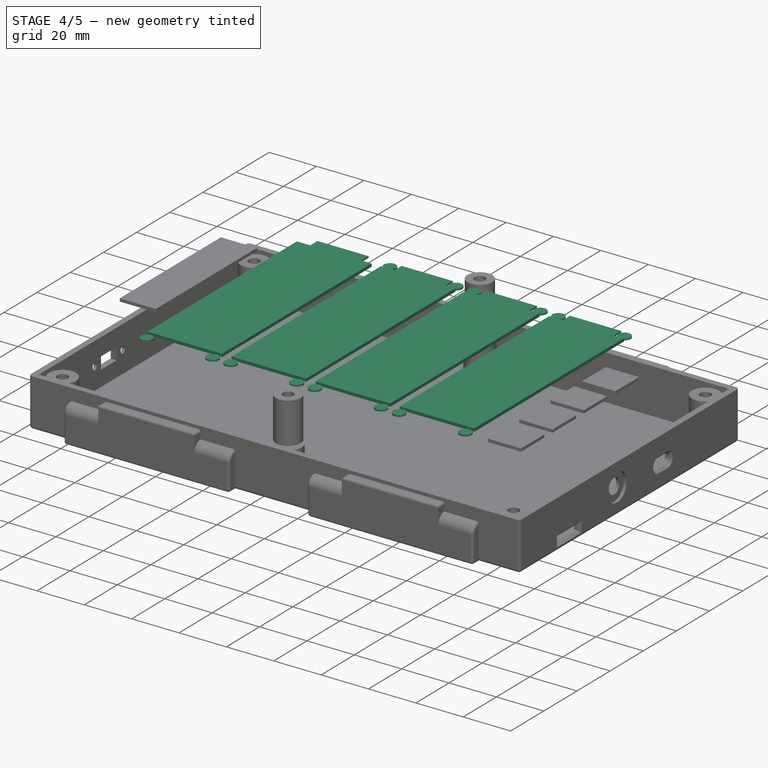
[diagram: stage 4 of 5 — iso view after this stage's code; geometry added in this stage tinted green]
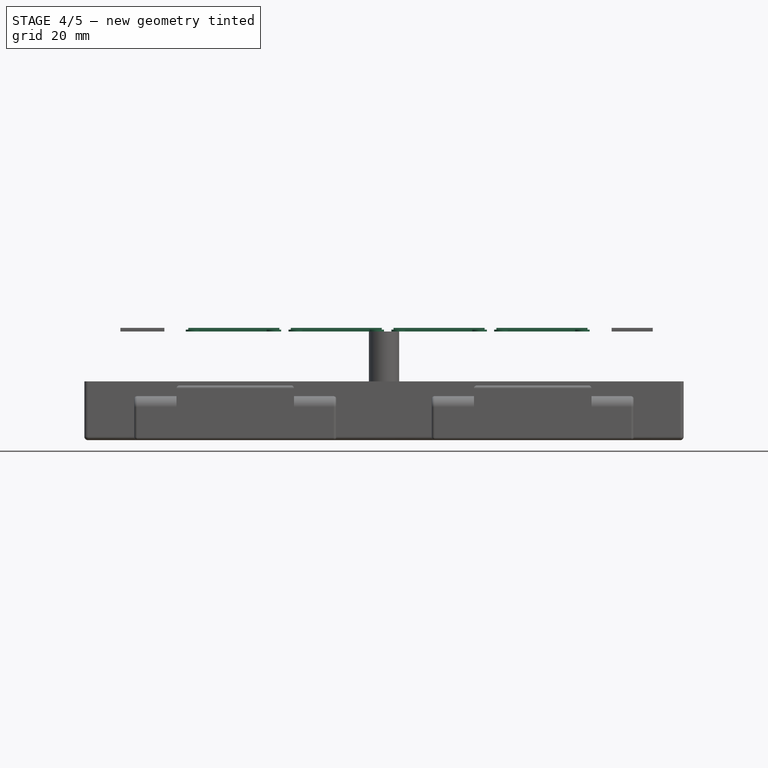
[diagram: stage 4 of 5 — front view after this stage's code; geometry added in this stage tinted green]
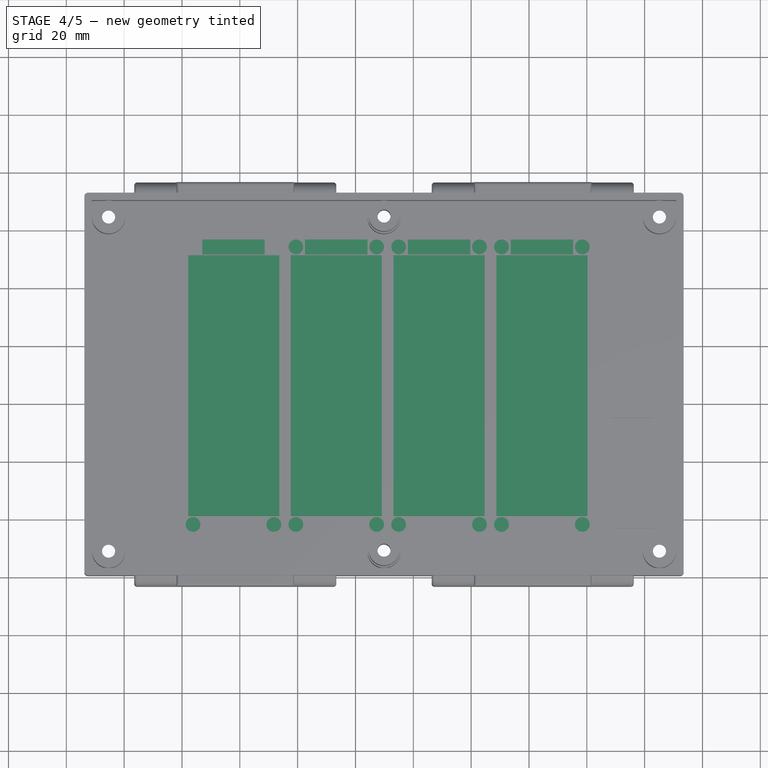
[diagram: stage 4 of 5 — top view after this stage's code; geometry added in this stage tinted green]
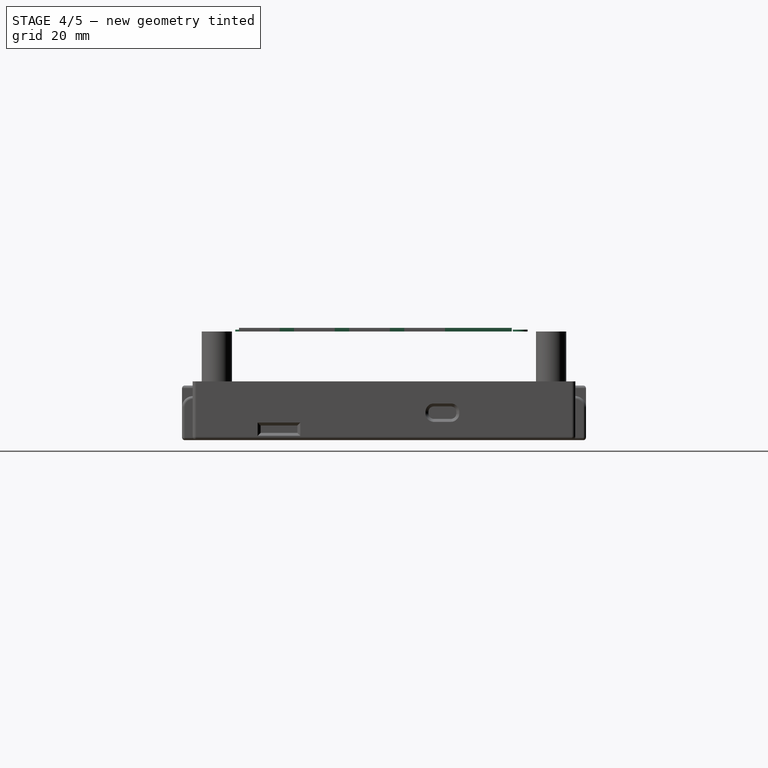
[diagram: stage 4 of 5 — right view after this stage's code; geometry added in this stage tinted green]
FEATURE [Part::Cylinder] Cylinder002
  Angle = 360
  AttacherType = Attacher::AttachEngine3D
  FirstAngle = 0
  Height = 0.635
  InvalidShape = false
  Placement = pos=(119.38,-46.228,17.272) rot=(0,0,1;0rad)
  Radius = 2.54
  SecondAngle = 0
  TreeRank = 7748
  ValidateShape = false
FEATURE [Part::Cylinder] Cylinder003
  Angle = 360
  AttacherType = Attacher::AttachEngine3D
  FirstAngle = 0
  Height = 0.635
  InvalidShape = false
  Placement = pos=(147.32,-46.228,17.272) rot=(0,0,1;0rad)
  Radius = 2.54
  SecondAngle = 0
  TreeRank = 7748
  ValidateShape = false
FEATURE [Part::Cylinder] Cylinder004
  Angle = 360
  AttacherType = Attacher::AttachEngine3D
  FirstAngle = 0
  Height = 0.635
  InvalidShape = false
  Placement = pos=(154.94,-46.228,17.272) rot=(0,0,1;0rad)
  Radius = 2.54
  SecondAngle = 0
  TreeRank = 7748
  ValidateShape = false
FEATURE [Part::Cylinder] Cylinder005
  Angle = 360
  AttacherType = Attacher::AttachEngine3D
  FirstAngle = 0
  Height = 0.635
  InvalidShape = false
  Placement = pos=(182.88,-46.228,17.272) rot=(0,0,1;0rad)
  Radius = 2.54
  SecondAngle = 0
  TreeRank = 7748
  ValidateShape = false
FEATURE [Part::Cylinder] Cylinder006
  Angle = 360
  AttacherType = Attacher::AttachEngine3D
  FirstAngle = 0
  Height = 0.635
  InvalidShape = false
  Placement = pos=(190.5,-46.228,17.272) rot=(0,0,1;0rad)
  Radius = 2.54
  SecondAngle = 0
  TreeRank = 7748
  ValidateShape = false
FEATURE [Part::Cylinder] Cylinder007
  Angle = 360
  AttacherType = Attacher::AttachEngine3D
  FirstAngle = 0
  Height = 0.635
  InvalidShape = false
  Placement = pos=(218.44,-46.228,17.272) rot=(0,0,1;0rad)
  Radius = 2.54
  SecondAngle = 0
  TreeRank = 7748
  ValidateShape = false
FEATURE [Part::Cylinder] Cylinder008
  Angle = 360
  AttacherType = Attacher::AttachEngine3D
  FirstAngle = 0
  Height = 0.635
  InvalidShape = false
  Placement = pos=(83.82,-142.24,17.272) rot=(0,0,1;0rad)
  Radius = 2.54
  SecondAngle = 0
  TreeRank = 7748
  ValidateShape = false
FEATURE [Part::Cylinder] Cylinder009
  Angle = 360
  AttacherType = Attacher::AttachEngine3D
  FirstAngle = 0
  Height = 0.635
  InvalidShape = false
  Placement = pos=(111.76,-142.24,17.272) rot=(0,0,1;0rad)
  Radius = 2.54
  SecondAngle = 0
  TreeRank = 7748
  ValidateShape = false
FEATURE [Part::Cylinder] Cylinder010
  Angle = 360
  AttacherType = Attacher::AttachEngine3D
  FirstAngle = 0
  Height = 0.635
  InvalidShape = false
  Placement = pos=(119.38,-142.24,17.272) rot=(0,0,1;0rad)
  Radius = 2.54
  SecondAngle = 0
  TreeRank = 7748
  ValidateShape = false
FEATURE [Part::Cylinder] Cylinder011
  Angle = 360
  AttacherType = Attacher::AttachEngine3D
  FirstAngle = 0
  Height = 0.635
  InvalidShape = false
  Placement = pos=(147.32,-142.24,17.272) rot=(0,0,1;0rad)
  Radius = 2.54
  SecondAngle = 0
  TreeRank = 7748
  ValidateShape = false
FEATURE [Part::Cylinder] Cylinder012
  Angle = 360
  AttacherType = Attacher::AttachEngine3D
  FirstAngle = 0
  Height = 0.635
  InvalidShape = false
  Placement = pos=(154.94,-142.24,17.272) rot=(0,0,1;0rad)
  Radius = 2.54
  SecondAngle = 0
  TreeRank = 7748
  ValidateShape = false
FEATURE [Part::Cylinder] Cylinder013
  Angle = 360
  AttacherType = Attacher::AttachEngine3D
  FirstAngle = 0
  Height = 0.635
  InvalidShape = false
  Placement = pos=(182.88,-142.24,17.272) rot=(0,0,1;0rad)
  Radius = 2.54
  SecondAngle = 0
  TreeRank = 7748
  ValidateShape = false
FEATURE [Part::Cylinder] Cylinder014
  Angle = 360
  AttacherType = Attacher::AttachEngine3D
  FirstAngle = 0
  Height = 0.635
  InvalidShape = false
  Placement = pos=(190.5,-142.24,17.272) rot=(0,0,1;0rad)
  Radius = 2.54
  SecondAngle = 0
  TreeRank = 7748
  ValidateShape = false
FEATURE [Part::Cylinder] Cylinder015
  Angle = 360
  AttacherType = Attacher::AttachEngine3D
  FirstAngle = 0
  Height = 0.635
  InvalidShape = false
  Placement = pos=(218.44,-142.24,17.272) rot=(0,0,1;0rad)
  Radius = 2.54
  SecondAngle = 0
  TreeRank = 7748
  ValidateShape = false
FEATURE [Part::Box] Box001  label="Cube001"
  AttacherType = Attacher::AttachEngine3D
  Height = 0.635
  InvalidShape = false
  Length = 21.59
  Placement = pos=(86.995,-48.768,0) rot=(0,0,1;0rad)
  TreeRank = 7751
  ValidateShape = false
  Width = 5.08
FEATURE [Part::Box] Box002  label="Cube002"
  AttacherType = Attacher::AttachEngine3D
  Height = 0.635
  InvalidShape = false
  Length = 21.59
  Placement = pos=(122.555,-48.768,0) rot=(0,0,1;0rad)
  TreeRank = 7751
  ValidateShape = false
  Width = 5.08
FEATURE [Part::Box] Box003  label="Cube003"
  AttacherType = Attacher::AttachEngine3D
  Height = 0.635
  InvalidShape = false
  Length = 21.59
  Placement = pos=(158.115,-48.768,0) rot=(0,0,1;0rad)
  TreeRank = 7751
  ValidateShape = false
  Width = 5.08
FEATURE [Part::Box] Box004  label="Cube004"
  AttacherType = Attacher::AttachEngine3D
  Height = 0.635
  InvalidShape = false
  Length = 21.59
  Placement = pos=(193.675,-48.768,0) rot=(0,0,1;0rad)
  TreeRank = 7751
  ValidateShape = false
  Width = 5.08
FEATURE [Part::MultiFuse] Fusion001
  InvalidShape = false
  Placement = pos=(0,0,17.272) rot=(0,0,1;0rad)
  Shapes = -> [Box004,Box001,Box002,Box003]
  TreeRank = 7752
  ValidateShape = false
FEATURE [Part::Box] Box005  label="Cube005"
  AttacherType = Attacher::AttachEngine3D
  Height = 1.27
  InvalidShape = false
  Length = 31.496
  Placement = pos=(82.169,-139.319,0) rot=(0,0,1;0rad)
  TreeRank = 7754
  ValidateShape = false
  Width = 90.17
FEATURE [Part::Box] Box006  label="Cube006"
  AttacherType = Attacher::AttachEngine3D
  Height = 1.27
  InvalidShape = false
  Length = 31.496
  Placement = pos=(117.602,-139.319,0) rot=(0,0,1;0rad)
  TreeRank = 7754
  ValidateShape = false
  Width = 90.17
FEATURE [Part::Box] Box007  label="Cube007"
  AttacherType = Attacher::AttachEngine3D
  Height = 1.27
  InvalidShape = false
  Length = 31.496
  Placement = pos=(153.162,-139.319,0) rot=(0,0,1;0rad)
  TreeRank = 7754
  ValidateShape = false
  Width = 90.17
FEATURE [Part::Box] Box008  label="Cube008"
  AttacherType = Attacher::AttachEngine3D
  Height = 1.27
  InvalidShape = false
  Length = 31.496
  Placement = pos=(188.722,-139.319,0) rot=(0,0,1;0rad)
  TreeRank = 7754
  ValidateShape = false
  Width = 90.17
FEATURE [Part::MultiFuse] Fusion002
  InvalidShape = false
  Placement = pos=(0,0,17.272) rot=(0,0,1;0rad)
  Shapes = -> [Box008,Box005,Box006,Box007]
  TreeRank = 7755
  ValidateShape = false
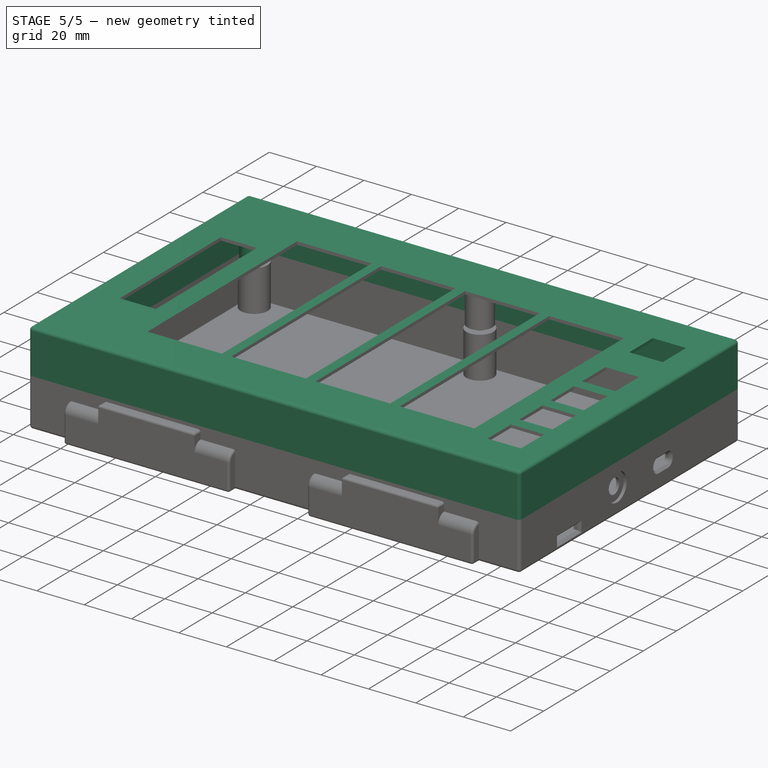
[diagram: stage 5 of 5 — iso view after this stage's code; geometry added in this stage tinted green]
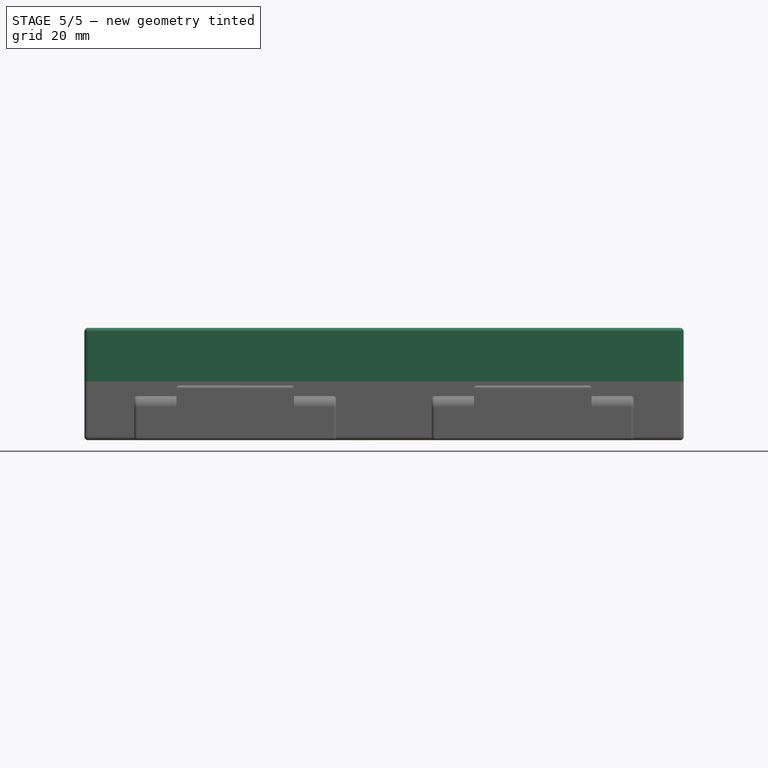
[diagram: stage 5 of 5 — front view after this stage's code; geometry added in this stage tinted green]
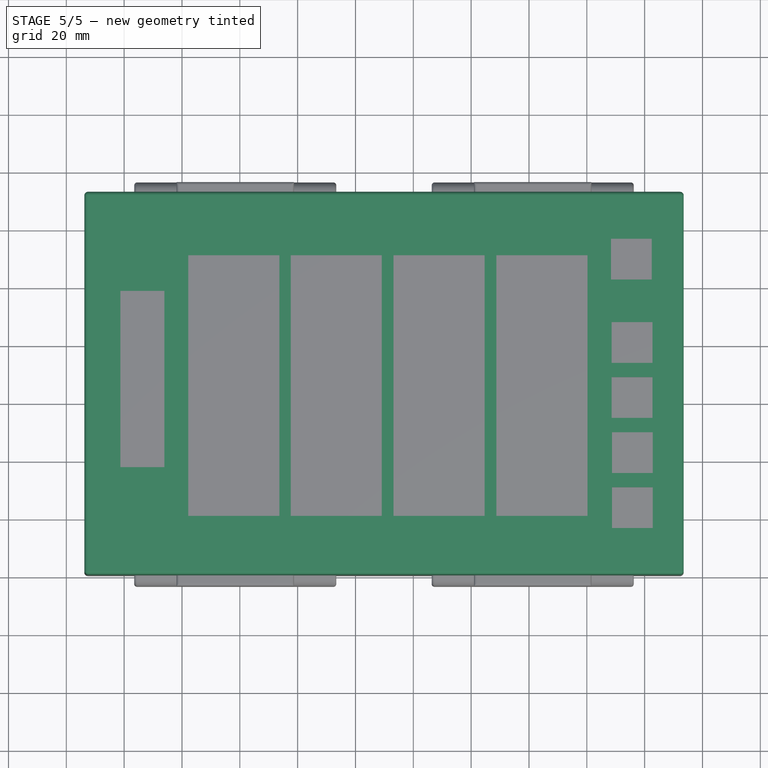
[diagram: stage 5 of 5 — top view after this stage's code; geometry added in this stage tinted green]
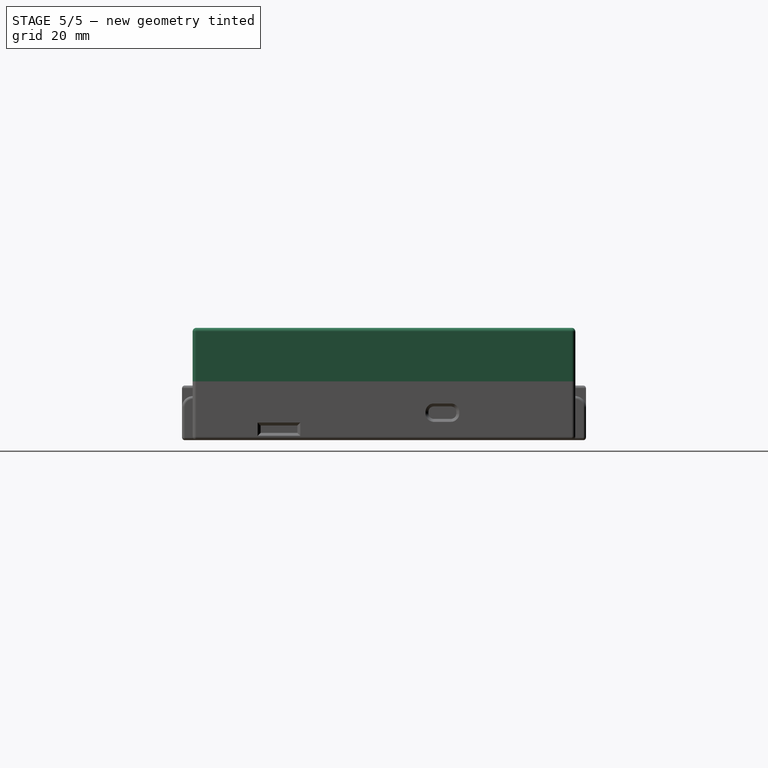
[diagram: stage 5 of 5 — right view after this stage's code; geometry added in this stage tinted green]
FEATURE [Part::Box] Box  label="Cube"
  AttacherType = Attacher::AttachEngine3D
  Height = 17.272
  InvalidShape = false
  Length = 204.724
  Placement = pos=(47.498,-158.242,0) rot=(0,0,1;0rad)
  TreeRank = 7744
  ValidateShape = false
  Width = 129.794
FEATURE [Part::Thickness] Thickness
  Faces = -> Box [Face5]
  Intersection = false
  InvalidShape = false
  Join = 0
  Mode = 0
  SelfIntersection = false
  TreeRank = 7747
  ValidateShape = false
  Value = 1.27
FEATURE [Part::Cylinder] Cylinder
  Angle = 360
  AttacherType = Attacher::AttachEngine3D
  FirstAngle = 0
  Height = 0.635
  InvalidShape = false
  Placement = pos=(83.82,-46.228,17.272) rot=(0,0,1;0rad)
  Radius = 2.54
  SecondAngle = 0
  TreeRank = 7748
  ValidateShape = false
FEATURE [Part::Cylinder] Cylinder001
  Angle = 360
  AttacherType = Attacher::AttachEngine3D
  FirstAngle = 0
  Height = 0.635
  InvalidShape = false
  Placement = pos=(111.76,-46.228,17.272) rot=(0,0,1;0rad)
  Radius = 2.54
  SecondAngle = 0
  TreeRank = 7748
  ValidateShape = false
FEATURE [Part::MultiFuse] Fusion
  InvalidShape = false
  Shapes = -> [Cylinder015,Cylinder,Cylinder001,Cylinder002,Cylinder003,Cylinder004,Cylinder005,Cylinder006,Cylinder007,Cylinder008,Cylinder009,Cylinder010,Cylinder011,Cylinder012,Cylinder013,Cylinder014]
  TreeRank = 7749
  ValidateShape = false
FEATURE [Part::Cut] Cut
  Base = -> Thickness
  InvalidShape = false
  Tool = -> Fusion
  TreeRank = 7750
  ValidateShape = false
FEATURE [Part::Cut] Cut001
  Base = -> Cut
  InvalidShape = false
  Tool = -> Fusion001
  TreeRank = 7753
  ValidateShape = false
FEATURE [Part::Cut] Cut002
  Base = -> Cut001
  InvalidShape = false
  Tool = -> Fusion002
  TreeRank = 7756
  ValidateShape = false
FEATURE [Part::Cut] Cut003
  Base = -> Cut002
  InvalidShape = false
  Tool = -> Box009
  TreeRank = 7782
  ValidateShape = false
FEATURE [Part::Box] Box013  label="Cube013"
  AttacherType = Attacher::AttachEngine3D
  Height = 1.27
  InvalidShape = false
  Length = 14.097
  Placement = pos=(228.346,-57.531,17.272) rot=(0,0,1;0rad)
  TreeRank = 7779
  ValidateShape = false
  Width = 14.097
FEATURE [Part::Box] Box015  label="Cube015"
  AttacherType = Attacher::AttachEngine3D
  Height = 17.272
  InvalidShape = false
  Length = 204.724
  Placement = pos=(47.498,-158.242,0) rot=(0,0,1;0rad)
  TreeRank = 7766
  ValidateShape = false
  Width = 129.794
FEATURE [Part::Box] Box016  label="Cube016"
  AttacherType = Attacher::AttachEngine3D
  Height = 17.272
  InvalidShape = false
  Length = 202.184
  Placement = pos=(48.768,-156.972,0) rot=(0,0,1;0rad)
  TreeRank = 7767
  ValidateShape = false
  Width = 127.254
FEATURE [Part::Cut] Cut006
  Base = -> Box015
  InvalidShape = false
  Tool = -> Box016
  TreeRank = 7777
  ValidateShape = false
FEATURE [Part::FeaturePython] Tube  # WARN: FeaturePython — macro-defined, semantics opaque (R4)
  AttacherType = Attacher::AttachEngine3D
  Height = 17.272
  InnerRadius = 2.2606
  InvalidShape = false
  OuterRadius = 5.2324
  Placement = pos=(54.61,-35.56,0) rot=(0,0,1;0rad)
  TreeRank = 7770
  ValidateShape = false
FEATURE [Part::FeaturePython] Tube001  # WARN: FeaturePython — macro-defined, semantics opaque (R4)
  AttacherType = Attacher::AttachEngine3D
  Height = 17.272
  InnerRadius = 2.2606
  InvalidShape = false
  OuterRadius = 5.2324
  Placement = pos=(245.11,-35.56,0) rot=(0,0,1;0rad)
  TreeRank = 7770
  ValidateShape = false
FEATURE [Part::FeaturePython] Tube002  # WARN: FeaturePython — macro-defined, semantics opaque (R4)
  AttacherType = Attacher::AttachEngine3D
  Height = 17.272
  InnerRadius = 2.2606
  InvalidShape = false
  OuterRadius = 5.2324
  Placement = pos=(54.61,-151.13,0) rot=(0,0,1;0rad)
  TreeRank = 7770
  ValidateShape = false
FEATURE [Part::FeaturePython] Tube003  # WARN: FeaturePython — macro-defined, semantics opaque (R4)
  AttacherType = Attacher::AttachEngine3D
  Height = 17.272
  InnerRadius = 2.2606
  InvalidShape = false
  OuterRadius = 5.2324
  Placement = pos=(245.11,-151.13,0) rot=(0,0,1;0rad)
  TreeRank = 7770
  ValidateShape = false
FEATURE [Part::Cut] Cut007
  Base = -> Cut003
  InvalidShape = false
  Tool = -> Fusion003
  TreeRank = 7783
  ValidateShape = false
FEATURE [Part::Cut] Cut008
  Base = -> Cut007
  InvalidShape = false
  Tool = -> Box013
  TreeRank = 7784
  ValidateShape = false
FEATURE [Part::MultiFuse] Fusion006
  InvalidShape = false
  Shapes = -> [Cut006,Cut008]
  TreeRank = 7785
  ValidateShape = false
FEATURE [Part::MultiFuse] Fusion005
  InvalidShape = false
  Shapes = -> [Tube,Tube001,Tube002,Tube003,Tube013,Tube012]
  TreeRank = 7776
  ValidateShape = false
FEATURE [Part::MultiFuse] Fusion007
  InvalidShape = false
  Shapes = -> [Fusion006,Fusion005]
  TreeRank = 7786
  ValidateShape = false
FEATURE [Part::MultiFuse] Fusion018  label="top"
  InvalidShape = false
  Shapes = -> [Fusion007,Extrude001]
  TreeRank = 7828
  ValidateShape = false
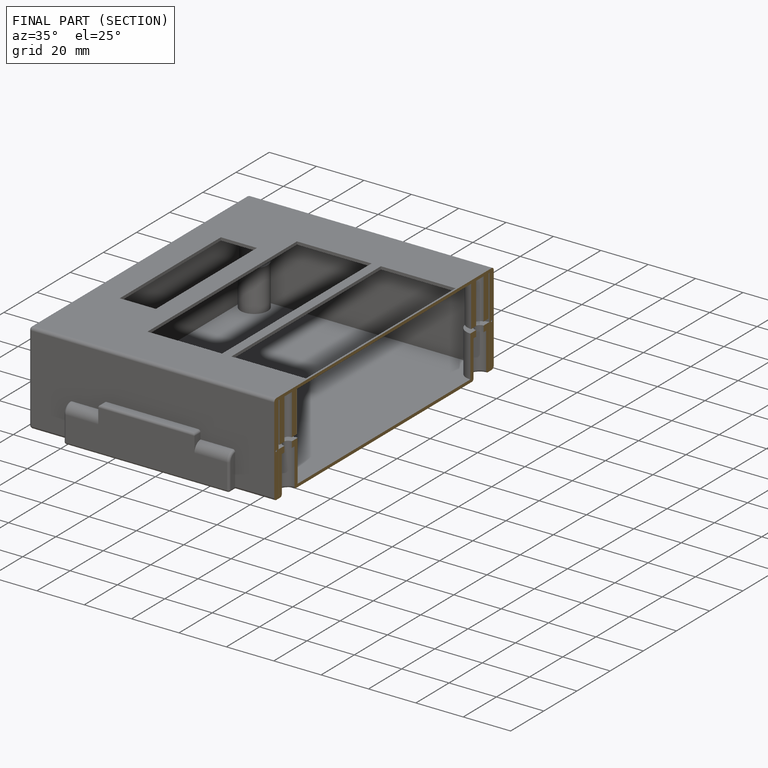
[diagram: finished part — half-section view (interior)]
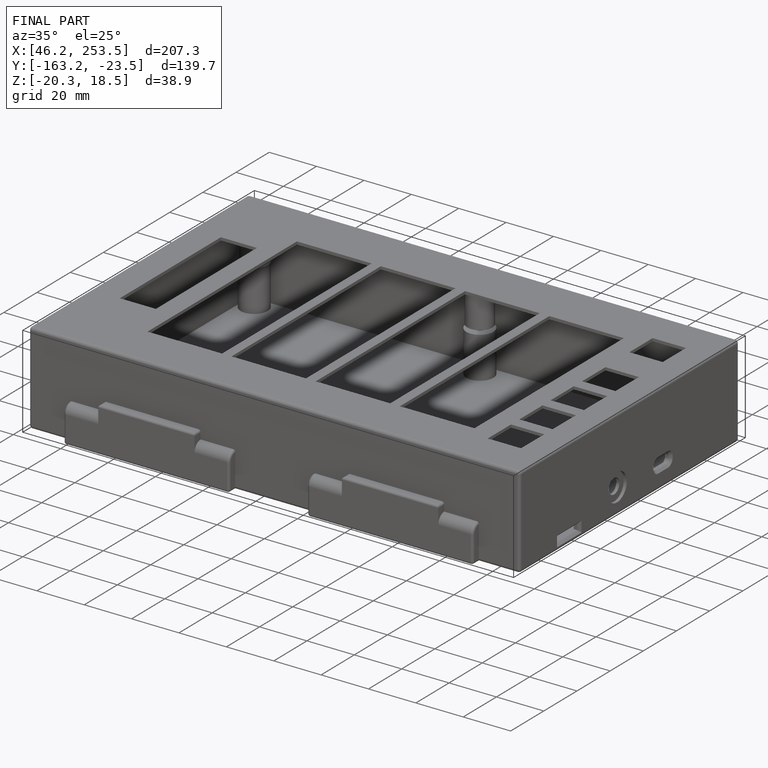
[diagram: finished part — iso view with bounding-box wireframe]
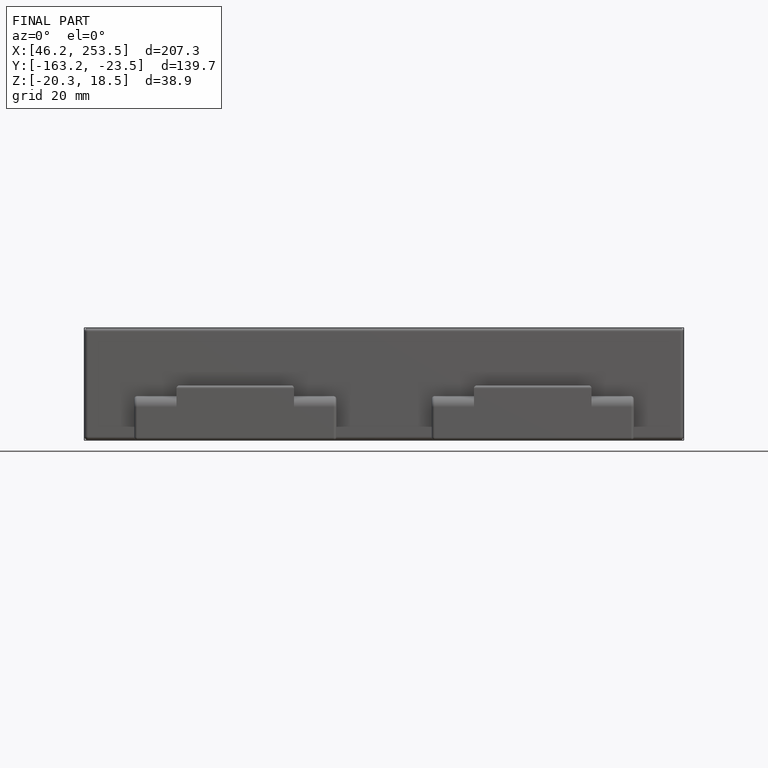
[diagram: finished part — front view with bounding-box wireframe]
